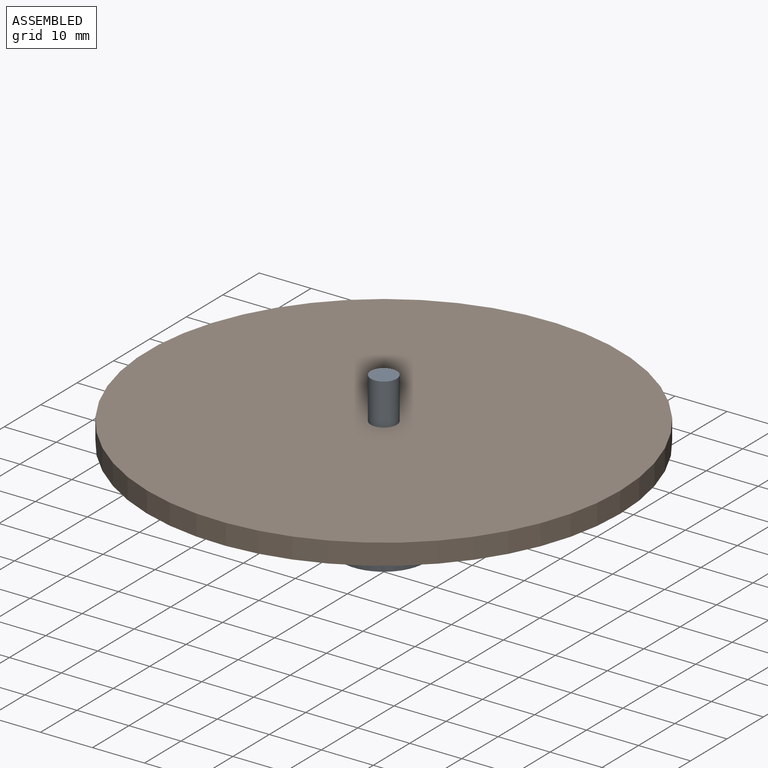
[diagram: assembled view]
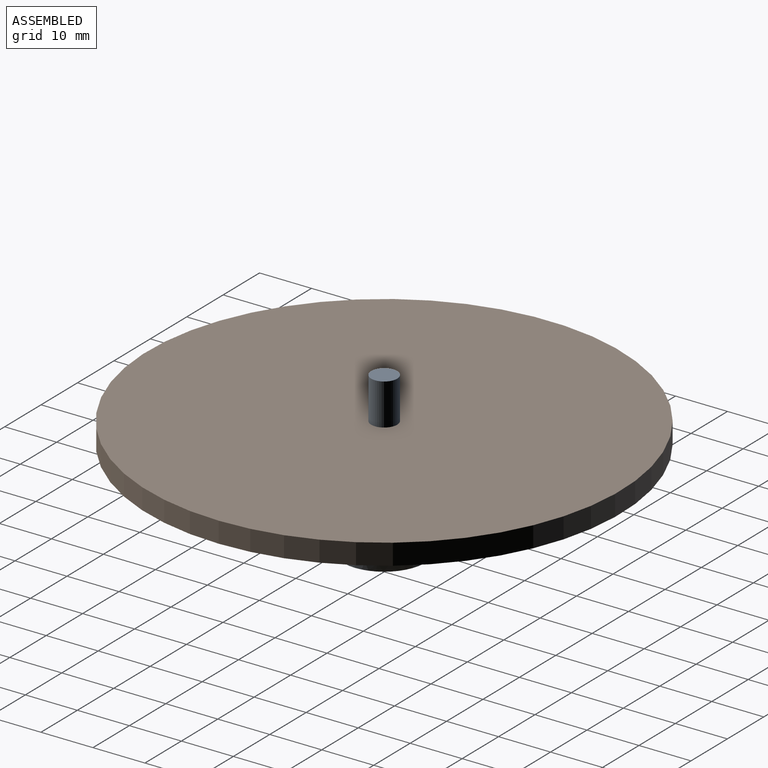
[diagram: assembled view, second angle]
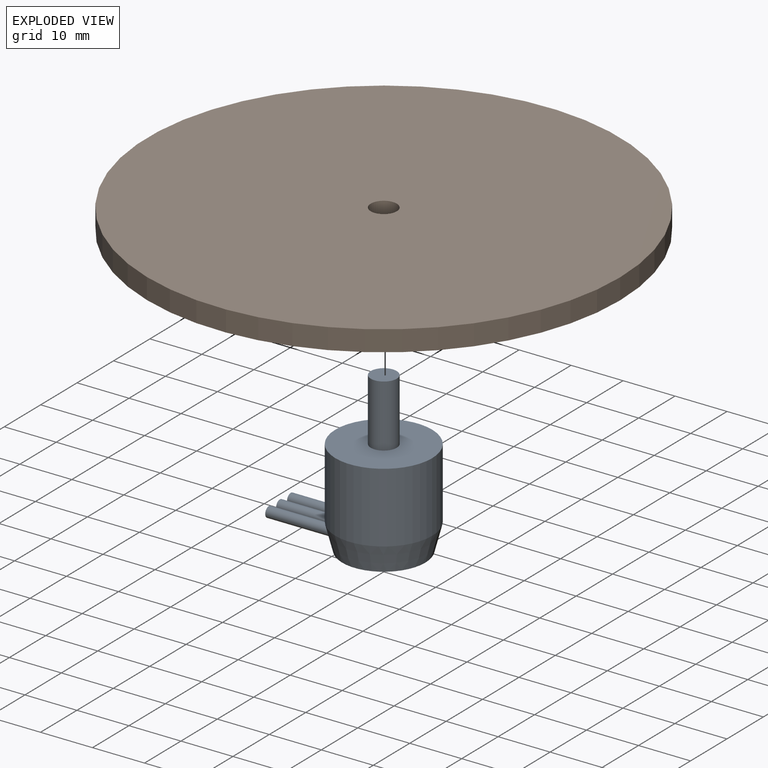
[diagram: exploded view]
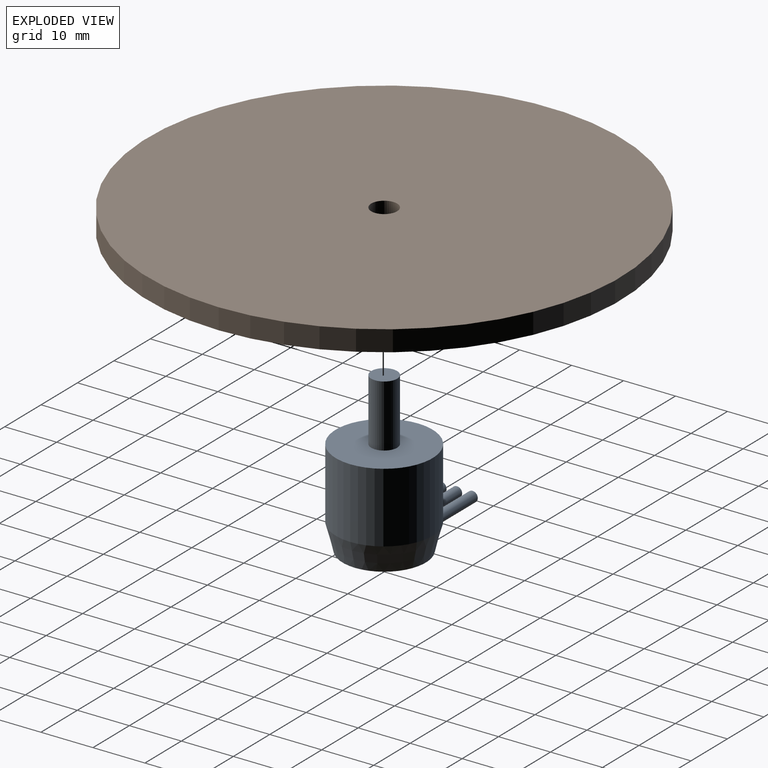
[diagram: exploded view, second angle]
ASSEMBLY  parts=2 mates=2
PART A: 22 faces, bbox 29.3x18.6x32.3 mm
  f0: cylinder r=9.3mm len=18.6mm, axis (0,0,-1), area 788.9mm2, adj f1,f7
  f1: plane 18.6x18.6mm, normal (0,0,1), area 252.1mm2, adj f0,f3
  f2: plane 16x16mm, normal (0,0,-1), area 175.9mm2, adj f5,f7,f14,f16,f18,f20
  f3: cylinder r=2.5mm len=12mm, axis (0,0,-1), area 188.5mm2, adj f1,f4
  f4: plane 5x5mm, normal (0,0,1), area 19.6mm2, adj f3
  f5: cylinder r=2mm len=4mm, axis (0,0,1), area 22mm2, adj f2,f6
  f6: plane 4x4mm, normal (0,0,-1), area 12.6mm2, adj f5
  f7: cone r=9.3mm half-angle=14.6deg, axis (0,0,1), area 270.7mm2, adj f0,f2,f8,f10,f12
  f8: cylinder r=1mm len=11.61mm, axis (1,0,0), area 71.5mm2, adj f7,f9
  f9: plane 2x2mm, normal (-1,0,0), area 3.1mm2, adj f8
  f10: cylinder r=1mm len=12.41mm, axis (1,0,0), area 74.9mm2, adj f7,f11
  f11: plane 2x2mm, normal (-1,0,0), area 3.1mm2, adj f10
  f12: cylinder r=1mm len=12.41mm, axis (1,0,0), area 74.9mm2, adj f7,f13
  f13: plane 2x2mm, normal (-1,0,0), area 3.1mm2, adj f12
  f14: cylinder r=1mm len=2mm, axis (0,0,-1), area 12.6mm2, adj f2,f15
  f15: cone r=0mm half-angle=59deg, axis (0,0,-1), area 3.7mm2, adj f14
  f16: cylinder r=1mm len=2mm, axis (0,0,-1), area 12.6mm2, adj f2,f17
  f17: cone r=0mm half-angle=59deg, axis (0,0,-1), area 3.7mm2, adj f16
  f18: cylinder r=1mm len=2mm, axis (0,0,-1), area 12.6mm2, adj f2,f19
  f19: cone r=0mm half-angle=59deg, axis (0,0,-1), area 3.7mm2, adj f18
  f20: cylinder r=1mm len=2mm, axis (0,0,-1), area 12.6mm2, adj f2,f21
  f21: cone r=0mm half-angle=59deg, axis (0,0,-1), area 3.7mm2, adj f20
PART B: 4 faces, bbox 90.9x90.9x4 mm
  f0: cylinder r=2.5mm len=5mm, axis (0,0,-1), area 62.8mm2, adj f2,f3
  f1: cylinder r=45.45mm len=90.9mm, axis (0,0,-1), area 1142.3mm2, adj f2,f3
  f2: plane 90.9x90.9mm, normal (0,0,1), area 6470mm2, adj f0,f1
  f3: plane 90.9x90.9mm, normal (0,0,-1), area 6470mm2, adj f0,f1
PLACE A at identity fixed
PLACE B t=(0,0,18.5)mm
MATE slider B.f1 <-> A.f0  axis (0,0,1) through (0,0,22.5)mm
MATE planar A.f0 <-> B.f1  axis (0,0,1) through (0,0,18.5)mm
